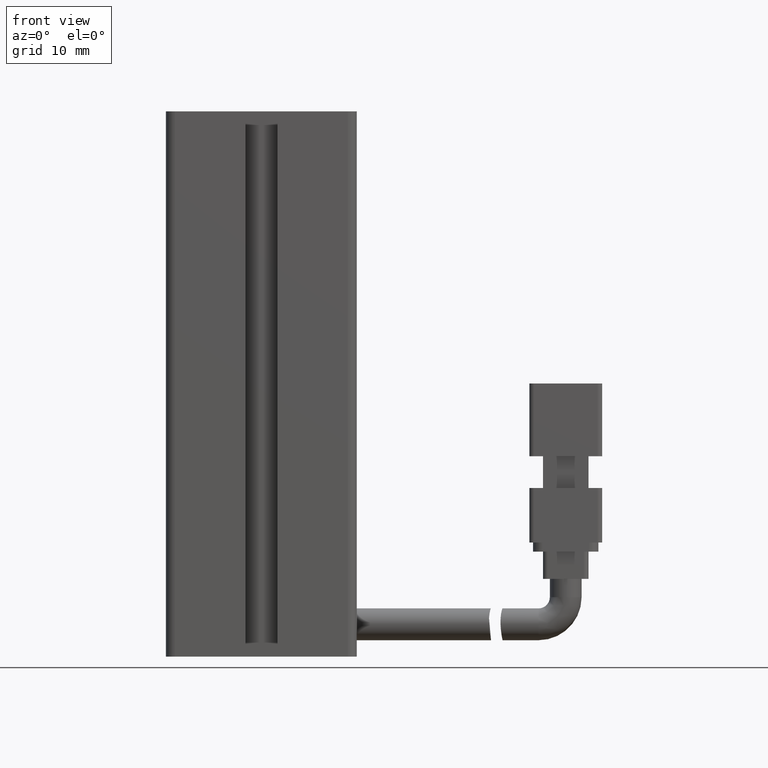
[diagram: clean part render]
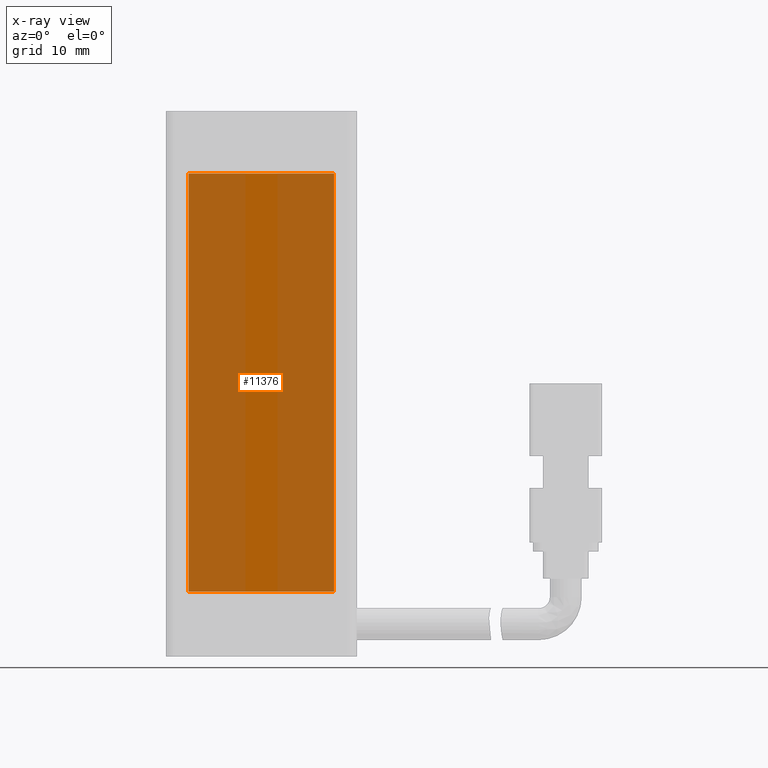
[diagram: x-ray — body ghosted, one internal face saturated and labeled with its STEP entity id]
A machine part, front view, then the same camera in x-ray: the body is ghosted and one INTERNAL B-rep face — a face not visible from any outside direction — is saturated and labeled: STEP entity #11376.
In plain terms, the highlighted planar face has unit normal (0, 1, 0).
Its self-contained STEP definition (entity closure, byte-faithful):
#854 = CARTESIAN_POINT ( 'NONE',  ( 30.42537974683541400, 19.58379746835444000, -91.84999999999999400 ) ) ;
#1690 = DIRECTION ( 'NONE',  ( -0.0000000000000000000, 0.0000000000000000000, -1.000000000000000000 ) ) ;
#2721 = CARTESIAN_POINT ( 'NONE',  ( 38.42537974683541800, 19.58379746835444000, -91.84999999999999400 ) ) ;
#3518 = DIRECTION ( 'NONE',  ( -0.0000000000000000000, 0.0000000000000000000, -1.000000000000000000 ) ) ;
#3651 = CARTESIAN_POINT ( 'NONE',  ( 22.42537974683541400, 19.58379746835444000, -114.8500000000000100 ) ) ;
#3948 = CARTESIAN_POINT ( 'NONE',  ( 30.42537974683541400, 19.58379746835444000, -114.8500000000000100 ) ) ;
#5499 = PLANE ( 'NONE',  #16284 ) ;
#5784 = ORIENTED_EDGE ( 'NONE', *, *, #14971, .F. ) ;
#5894 = CARTESIAN_POINT ( 'NONE',  ( 22.42537974683541400, 19.58379746835444000, -137.8499999999999900 ) ) ;
#5976 = DIRECTION ( 'NONE',  ( 0.0000000000000000000, 1.000000000000000000, 0.0000000000000000000 ) ) ;
#7221 = VERTEX_POINT ( 'NONE', #28003 ) ;
#7389 = ORIENTED_EDGE ( 'NONE', *, *, #16573, .F. ) ;
#8098 = EDGE_CURVE ( 'NONE', #20152, #11584, #12033, .T. ) ;
#8810 = VERTEX_POINT ( 'NONE', #5894 ) ;
#8879 = CARTESIAN_POINT ( 'NONE',  ( 30.42537974683541400, 19.58379746835444000, -137.8499999999999900 ) ) ;
#9555 = VECTOR ( 'NONE', #16359, 1000.000000000000000 ) ;
#11376 = ADVANCED_FACE ( 'NONE', ( #22679 ), #5499, .F. ) ;
#11584 = VERTEX_POINT ( 'NONE', #23905 ) ;
#12033 = LINE ( 'NONE', #14366, #24825 ) ;
#14108 = ORIENTED_EDGE ( 'NONE', *, *, #8098, .F. ) ;
#14366 = CARTESIAN_POINT ( 'NONE',  ( 38.42537974683541800, 19.58379746835444000, -114.8500000000000100 ) ) ;
#14971 = EDGE_CURVE ( 'NONE', #7221, #20152, #21986, .T. ) ;
#15434 = VECTOR ( 'NONE', #23500, 1000.000000000000000 ) ;
#16284 = AXIS2_PLACEMENT_3D ( 'NONE', #3948, #5976, #1690 ) ;
#16359 = DIRECTION ( 'NONE',  ( 1.000000000000000000, -0.0000000000000000000, -0.0000000000000000000 ) ) ;
#16573 = EDGE_CURVE ( 'NONE', #11584, #8810, #24263, .T. ) ;
#17998 = ORIENTED_EDGE ( 'NONE', *, *, #18458, .F. ) ;
#18402 = VECTOR ( 'NONE', #24297, 1000.000000000000000 ) ;
#18458 = EDGE_CURVE ( 'NONE', #8810, #7221, #20620, .T. ) ;
#20152 = VERTEX_POINT ( 'NONE', #2721 ) ;
#20234 = EDGE_LOOP ( 'NONE', ( #17998, #7389, #14108, #5784 ) ) ;
#20620 = LINE ( 'NONE', #3651, #15434 ) ;
#21986 = LINE ( 'NONE', #854, #9555 ) ;
#22679 = FACE_OUTER_BOUND ( 'NONE', #20234, .T. ) ;
#23500 = DIRECTION ( 'NONE',  ( 0.0000000000000000000, -0.0000000000000000000, 1.000000000000000000 ) ) ;
#23905 = CARTESIAN_POINT ( 'NONE',  ( 38.42537974683541800, 19.58379746835444000, -137.8499999999999900 ) ) ;
#24263 = LINE ( 'NONE', #8879, #18402 ) ;
#24297 = DIRECTION ( 'NONE',  ( -1.000000000000000000, 0.0000000000000000000, 0.0000000000000000000 ) ) ;
#24825 = VECTOR ( 'NONE', #3518, 1000.000000000000000 ) ;
#28003 = CARTESIAN_POINT ( 'NONE',  ( 22.42537974683541400, 19.58379746835444000, -91.84999999999999400 ) ) ;